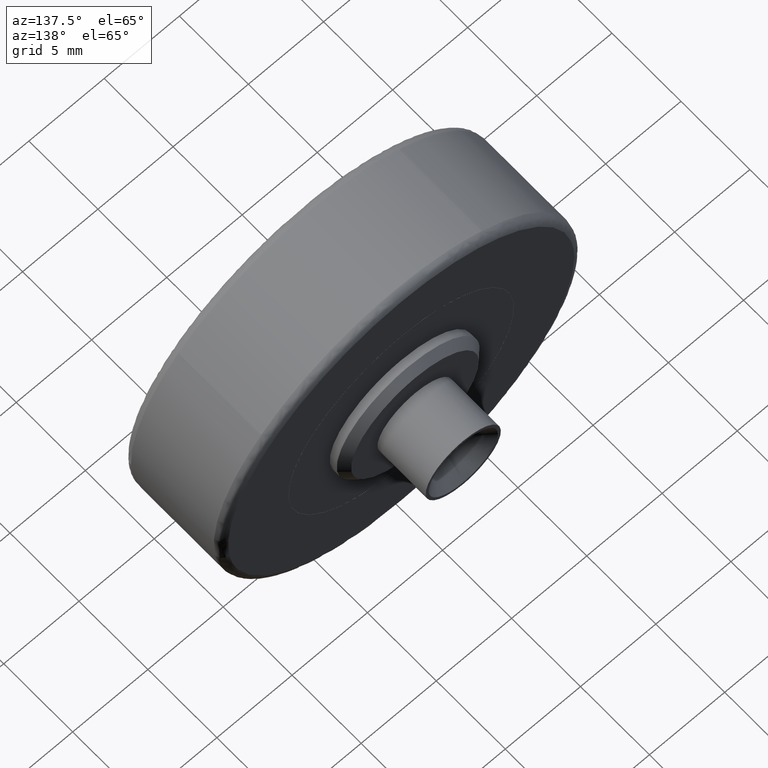
[diagram: clean part render]
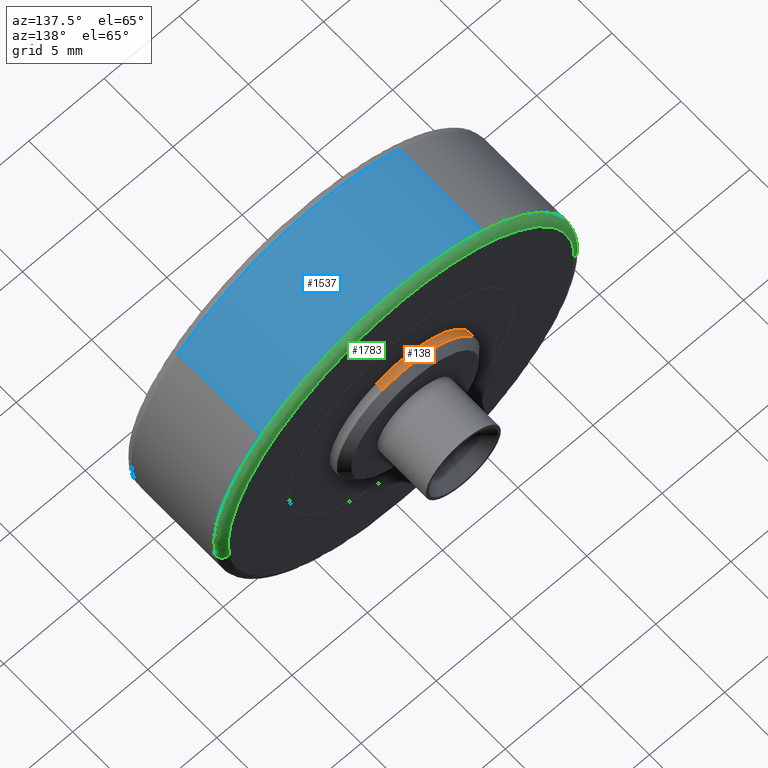
[diagram: same view with three faces highlighted in distinct colors, each labeled with its STEP entity id]
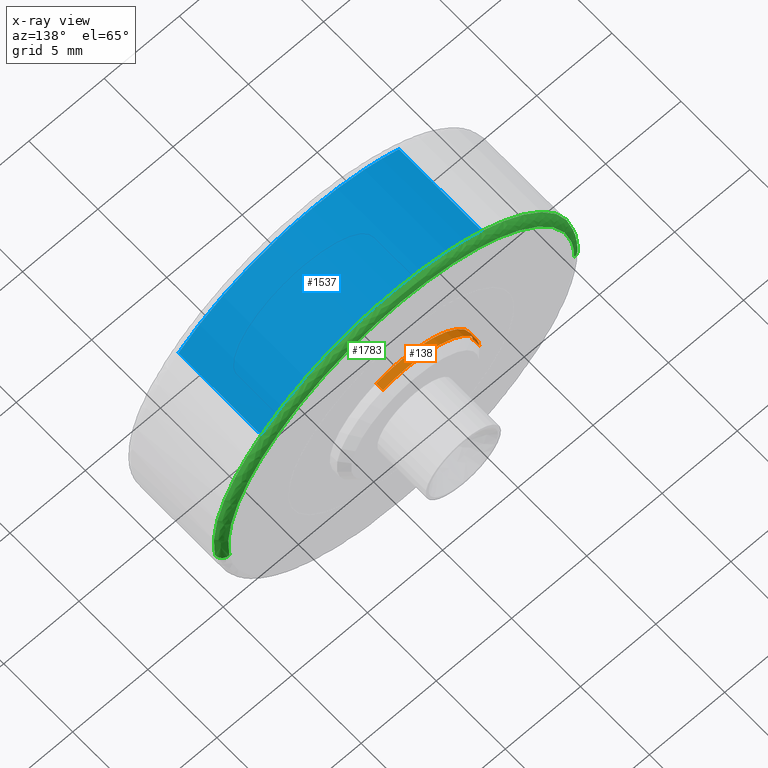
[diagram: x-ray of the same camera — body ghosted, the three highlighted faces saturated]
A machine part, auxiliary view with three faces highlighted in distinct colors.
The next image is the same camera in x-ray (body ghosted, the three faces saturated) — at least one of them is partly hidden behind the body in this view.
Their STEP definitions:

[orange] entity #138 — the highlighted face is a freeform B-spline surface patch.
#44=CARTESIAN_POINT('',(1.670185378359968,7.512500000000002,4.446681999189122));
#45=CARTESIAN_POINT('',(1.002199895648189,7.512500000000003,4.697579091984466));
#46=CARTESIAN_POINT('',(0.289980562790571,7.512500000000001,4.741140292503867));
#47=CARTESIAN_POINT('',(-4.451159729713296,7.512500000000002,5.031120855294438));
#48=CARTESIAN_POINT('',(-4.741140292503867,7.512500000000001,0.289980562790571));
#49=CARTESIAN_POINT('',(1.670185378359968,6.987187499999999,4.446681999189122));
#50=CARTESIAN_POINT('',(1.002199895648189,6.987187499999999,4.697579091984466));
#51=CARTESIAN_POINT('',(0.289980562790571,6.987187499999999,4.741140292503867));
#52=CARTESIAN_POINT('',(-4.451159729713296,6.987187499999999,5.031120855294438));
#53=CARTESIAN_POINT('',(-4.741140292503867,6.987187499999999,0.289980562790571));
#61=(BOUNDED_SURFACE()B_SPLINE_SURFACE(2,1,((#44,#49),(#45,#50),(#46,#51),(#47,#52),(#48,#53)),.UNSPECIFIED.,.F.,.F.,.U.)B_SPLINE_SURFACE_WITH_KNOTS((3,2,3),(2,2),(0.0,1.574011537017761,9.444069222106565),(0.0,1.0),.UNSPECIFIED.)GEOMETRIC_REPRESENTATION_ITEM()RATIONAL_B_SPLINE_SURFACE(((0.906274169979695,0.906274169979695),(0.941421356237309,0.941421356237309),(1.0,1.0),(0.707106781186548,0.707106781186548),(1.0,1.0)))REPRESENTATION_ITEM('')SURFACE());
#62=CARTESIAN_POINT('',(1.670185378365252,7.500000000000000,4.446681999187137));
#63=VERTEX_POINT('',#62);
#64=CARTESIAN_POINT('',(0.0,7.500000000000000,4.750000000000000));
#65=VERTEX_POINT('',#64);
#66=CARTESIAN_POINT('',(1.670185378365252,7.500000000000000,4.446681999187137));
#67=CARTESIAN_POINT('',(0.862635083822945,7.500000000000000,4.750000000000000));
#68=CARTESIAN_POINT('',(0.0,7.500000000000000,4.750000000000000));
#76=(BOUNDED_CURVE()B_SPLINE_CURVE(2,(#66,#67,#68),.UNSPECIFIED.,.F.,.U.)B_SPLINE_CURVE_WITH_KNOTS((3,3),(0.440284170898534,0.500000000000000),.UNSPECIFIED.)CURVE()GEOMETRIC_REPRESENTATION_ITEM()RATIONAL_B_SPLINE_CURVE((0.893499554635306,0.930038554401430,1.0))REPRESENTATION_ITEM(''));
#77=EDGE_CURVE('',#63,#65,#76,.T.);
#78=ORIENTED_EDGE('',*,*,#77,.T.);
#79=CARTESIAN_POINT('',(-4.741140292506802,7.499999999989063,0.289980562832113));
#80=VERTEX_POINT('',#79);
#81=CARTESIAN_POINT('',(0.0,7.500000000000000,4.750000000000000));
#82=CARTESIAN_POINT('',(-4.468353817646419,7.499999999999999,4.750000000000000));
#83=CARTESIAN_POINT('',(-4.741140292506802,7.499999999989063,0.289980562832113));
#91=(BOUNDED_CURVE()B_SPLINE_CURVE(2,(#81,#82,#83),.UNSPECIFIED.,.F.,.U.)B_SPLINE_CURVE_WITH_KNOTS((3,3),(0.500000000000000,0.739332962235970),.UNSPECIFIED.)CURVE()GEOMETRIC_REPRESENTATION_ITEM()RATIONAL_B_SPLINE_CURVE((1.0,0.719603993290194,0.976072041660346))REPRESENTATION_ITEM(''));
#92=EDGE_CURVE('',#65,#80,#91,.T.);
#93=ORIENTED_EDGE('',*,*,#92,.T.);
#94=CARTESIAN_POINT('',(-4.741140292502350,7.0,0.289980562815380));
#95=VERTEX_POINT('',#94);
#96=CARTESIAN_POINT('',(-4.741140292506802,7.499999999989063,0.289980562832113));
#97=CARTESIAN_POINT('',(-4.741140292502350,7.0,0.289980562815380));
#98=QUASI_UNIFORM_CURVE('',1,(#96,#97),.UNSPECIFIED.,.F.,.U.);
#99=EDGE_CURVE('',#80,#95,#98,.T.);
#100=ORIENTED_EDGE('',*,*,#99,.T.);
#101=CARTESIAN_POINT('',(0.0,7.0,4.750000000000000));
#102=VERTEX_POINT('',#101);
#103=CARTESIAN_POINT('',(0.0,7.0,4.750000000000000));
#104=CARTESIAN_POINT('',(-4.468353817755182,6.999999999999999,4.750000000000000));
#105=CARTESIAN_POINT('',(-4.741140292502350,7.0,0.289980562815380));
#113=(BOUNDED_CURVE()B_SPLINE_CURVE(2,(#103,#104,#105),.UNSPECIFIED.,.F.,.U.)B_SPLINE_CURVE_WITH_KNOTS((3,3),(0.500000000000000,0.739332962240162),.UNSPECIFIED.)CURVE()GEOMETRIC_REPRESENTATION_ITEM()RATIONAL_B_SPLINE_CURVE((1.0,0.719603993285282,0.976072041669330))REPRESENTATION_ITEM(''));
#114=EDGE_CURVE('',#102,#95,#113,.T.);
#115=ORIENTED_EDGE('',*,*,#114,.F.);
#116=CARTESIAN_POINT('',(1.670179397081614,6.999999999999999,4.446684245763721));
#117=VERTEX_POINT('',#116);
#118=CARTESIAN_POINT('',(1.670179397081614,6.999999999999999,4.446684245763721));
#119=CARTESIAN_POINT('',(0.862631783818796,6.999999999999999,4.750000000000001));
#120=CARTESIAN_POINT('',(0.0,7.0,4.750000000000000));
#128=(BOUNDED_CURVE()B_SPLINE_CURVE(2,(#118,#119,#120),.UNSPECIFIED.,.F.,.U.)B_SPLINE_CURVE_WITH_KNOTS((3,3),(0.440284383358889,0.500000000000000),.UNSPECIFIED.)CURVE()GEOMETRIC_REPRESENTATION_ITEM()RATIONAL_B_SPLINE_CURVE((0.893499814636771,0.930038803314220,1.0))REPRESENTATION_ITEM(''));
#129=EDGE_CURVE('',#117,#102,#128,.T.);
#130=ORIENTED_EDGE('',*,*,#129,.F.);
#131=CARTESIAN_POINT('',(1.670185378365252,7.500000000000000,4.446681999187137));
#132=CARTESIAN_POINT('',(1.670179397081614,6.999999999999999,4.446684245763721));
#133=QUASI_UNIFORM_CURVE('',1,(#131,#132),.UNSPECIFIED.,.F.,.U.);
#134=EDGE_CURVE('',#63,#117,#133,.T.);
#135=ORIENTED_EDGE('',*,*,#134,.F.);
#136=EDGE_LOOP('',(#78,#93,#100,#115,#130,#135));
#137=FACE_OUTER_BOUND('',#136,.T.);
#138=ADVANCED_FACE('',(#137),#61,.T.);

[blue] entity #1537 — the highlighted face is a freeform B-spline surface patch.
#1320=CARTESIAN_POINT('',(-5.810634932665174,0.499999999980924,10.499358155586769));
#1321=VERTEX_POINT('',#1320);
#1337=CARTESIAN_POINT('',(-5.810634867246032,6.500000000006367,10.499358191791520));
#1338=VERTEX_POINT('',#1337);
#1339=CARTESIAN_POINT('',(-5.810634867246032,6.500000000006367,10.499358191791520));
#1340=CARTESIAN_POINT('',(-5.810634932665174,0.499999999980924,10.499358155586769));
#1341=QUASI_UNIFORM_CURVE('',1,(#1339,#1340),.UNSPECIFIED.,.F.,.U.);
#1342=EDGE_CURVE('',#1338,#1321,#1341,.T.);
#1389=CARTESIAN_POINT('',(8.847328477253249,6.500000000000000,8.107082016088356));
#1390=VERTEX_POINT('',#1389);
#1406=CARTESIAN_POINT('',(8.847328482693925,0.500000000000004,8.107082010150897));
#1407=VERTEX_POINT('',#1406);
#1408=CARTESIAN_POINT('',(8.847328477253249,6.500000000000000,8.107082016088356));
#1409=CARTESIAN_POINT('',(8.847328482693925,0.500000000000004,8.107082010150897));
#1410=QUASI_UNIFORM_CURVE('',1,(#1408,#1409),.UNSPECIFIED.,.F.,.U.);
#1411=EDGE_CURVE('',#1390,#1407,#1410,.T.);
#1463=CARTESIAN_POINT('',(8.847328041721486,6.650000000059784,8.107082491387921));
#1464=CARTESIAN_POINT('',(2.460650501839288,6.650000000059784,15.076917984249544));
#1465=CARTESIAN_POINT('',(-5.810636787052554,6.650000000059783,10.499357129317559));
#1466=CARTESIAN_POINT('',(8.847328041721486,0.346249999846186,8.107082491387921));
#1467=CARTESIAN_POINT('',(2.460650501839288,0.346249999846186,15.076917984249544));
#1468=CARTESIAN_POINT('',(-5.810636787052554,0.346249999846186,10.499357129317559));
#1476=(BOUNDED_SURFACE()B_SPLINE_SURFACE(2,1,((#1463,#1466),(#1464,#1467),(#1465,#1468)),.UNSPECIFIED.,.F.,.F.,.U.)B_SPLINE_SURFACE_WITH_KNOTS((3,3),(2,2),(0.0,16.628055996427161),(0.0,6.303750000213598),.UNSPECIFIED.)GEOMETRIC_REPRESENTATION_ITEM()RATIONAL_B_SPLINE_SURFACE(((1.0,1.0),(0.753969696196700,0.753969696196700),(0.921270302782944,0.921270302782944)))REPRESENTATION_ITEM('')SURFACE());
#1477=CARTESIAN_POINT('',(0.0,0.500000000000000,12.0));
#1478=VERTEX_POINT('',#1477);
#1479=CARTESIAN_POINT('',(0.0,0.500000000000000,12.0));
#1480=CARTESIAN_POINT('',(-3.099093703464986,0.500000000000000,11.999999999999996));
#1481=CARTESIAN_POINT('',(-5.810634932665174,0.499999999980924,10.499358155586771));
#1489=(BOUNDED_CURVE()B_SPLINE_CURVE(2,(#1479,#1480,#1481),.UNSPECIFIED.,.F.,.U.)B_SPLINE_CURVE_WITH_KNOTS((3,3),(0.500000000000000,0.582484261791916),.UNSPECIFIED.)CURVE()GEOMETRIC_REPRESENTATION_ITEM()RATIONAL_B_SPLINE_CURVE((1.0,0.903363676249257,0.870495159113431))REPRESENTATION_ITEM(''));
#1490=EDGE_CURVE('',#1478,#1321,#1489,.T.);
#1491=ORIENTED_EDGE('',*,*,#1490,.F.);
#1492=CARTESIAN_POINT('',(8.847328482693925,0.500000000000004,8.107082010150897));
#1493=CARTESIAN_POINT('',(5.280127149796825,0.500000000000000,12.000000000000002));
#1494=CARTESIAN_POINT('',(0.0,0.500000000000000,12.0));
#1502=(BOUNDED_CURVE()B_SPLINE_CURVE(2,(#1492,#1493,#1494),.UNSPECIFIED.,.F.,.U.)B_SPLINE_CURVE_WITH_KNOTS((3,3),(0.368415192661570,0.500000000000000),.UNSPECIFIED.)CURVE()GEOMETRIC_REPRESENTATION_ITEM()RATIONAL_B_SPLINE_CURVE((0.853959782865036,0.845838808926797,1.0))REPRESENTATION_ITEM(''));
#1503=EDGE_CURVE('',#1407,#1478,#1502,.T.);
#1504=ORIENTED_EDGE('',*,*,#1503,.F.);
#1505=ORIENTED_EDGE('',*,*,#1411,.F.);
#1506=CARTESIAN_POINT('',(0.0,6.500000000000000,12.0));
#1507=VERTEX_POINT('',#1506);
#1508=CARTESIAN_POINT('',(8.847328477253249,6.500000000000000,8.107082016088356));
#1509=CARTESIAN_POINT('',(5.280127140184427,6.500000000000001,12.000000000000002));
#1510=CARTESIAN_POINT('',(0.0,6.500000000000000,12.0));
#1518=(BOUNDED_CURVE()B_SPLINE_CURVE(2,(#1508,#1509,#1510),.UNSPECIFIED.,.F.,.U.)B_SPLINE_CURVE_WITH_KNOTS((3,3),(0.368415192864190,0.500000000000000),.UNSPECIFIED.)CURVE()GEOMETRIC_REPRESENTATION_ITEM()RATIONAL_B_SPLINE_CURVE((0.853959782840026,0.845838809164181,1.0))REPRESENTATION_ITEM(''));
#1519=EDGE_CURVE('',#1390,#1507,#1518,.T.);
#1520=ORIENTED_EDGE('',*,*,#1519,.T.);
#1521=CARTESIAN_POINT('',(0.0,6.500000000000000,12.0));
#1522=CARTESIAN_POINT('',(-3.099093663586892,6.500000000000000,12.000000000000002));
#1523=CARTESIAN_POINT('',(-5.810634867246032,6.500000000006366,10.499358191791520));
#1531=(BOUNDED_CURVE()B_SPLINE_CURVE(2,(#1521,#1522,#1523),.UNSPECIFIED.,.F.,.U.)B_SPLINE_CURVE_WITH_KNOTS((3,3),(0.500000000000000,0.582484260833104),.UNSPECIFIED.)CURVE()GEOMETRIC_REPRESENTATION_ITEM()RATIONAL_B_SPLINE_CURVE((1.0,0.903363677372575,0.870495159877570))REPRESENTATION_ITEM(''));
#1532=EDGE_CURVE('',#1507,#1338,#1531,.T.);
#1533=ORIENTED_EDGE('',*,*,#1532,.T.);
#1534=ORIENTED_EDGE('',*,*,#1342,.T.);
#1535=EDGE_LOOP('',(#1491,#1504,#1505,#1520,#1533,#1534));
#1536=FACE_OUTER_BOUND('',#1535,.T.);
#1537=ADVANCED_FACE('',(#1536),#1476,.T.);

[green] entity #1783 — the highlighted face is a freeform B-spline surface patch.
#1337=CARTESIAN_POINT('',(-5.810634867246032,6.500000000006367,10.499358191791520));
#1338=VERTEX_POINT('',#1337);
#1344=CARTESIAN_POINT('',(-12.0,6.500000000050907,0.0));
#1345=VERTEX_POINT('',#1344);
#1346=CARTESIAN_POINT('',(-5.810634867246032,6.500000000006366,10.499358191791520));
#1347=CARTESIAN_POINT('',(-11.999999999999963,6.500000000020898,7.073992546621740));
#1348=CARTESIAN_POINT('',(-11.999999999999993,6.500000000050908,0.0));
#1356=(BOUNDED_CURVE()B_SPLINE_CURVE(2,(#1346,#1347,#1348),.UNSPECIFIED.,.F.,.U.)B_SPLINE_CURVE_WITH_KNOTS((3,3),(0.582484260833104,0.749999999999999),.UNSPECIFIED.)CURVE()GEOMETRIC_REPRESENTATION_ITEM()RATIONAL_B_SPLINE_CURVE((0.870495159877570,0.803743103813973,0.999999999999998))REPRESENTATION_ITEM(''));
#1357=EDGE_CURVE('',#1338,#1345,#1356,.T.);
#1374=CARTESIAN_POINT('',(11.919739665420460,6.500000000054701,-1.385570751929333));
#1375=VERTEX_POINT('',#1374);
#1389=CARTESIAN_POINT('',(8.847328477253249,6.500000000000000,8.107082016088356));
#1390=VERTEX_POINT('',#1389);
#1391=CARTESIAN_POINT('',(11.919739665420463,6.500000000054701,-1.385570751929333));
#1392=CARTESIAN_POINT('',(11.999999999999998,6.499999999999999,-0.695109949179016));
#1393=CARTESIAN_POINT('',(12.0,6.500000000000000,-1.535880E-016));
#1394=CARTESIAN_POINT('',(12.000000000000002,6.500000000000000,4.666544040076233));
#1395=CARTESIAN_POINT('',(8.847328477253249,6.500000000000000,8.107082016088357));
#1403=(BOUNDED_CURVE()B_SPLINE_CURVE(2,(#1391,#1392,#1393,#1394,#1395),.UNSPECIFIED.,.F.,.U.)B_SPLINE_CURVE_WITH_KNOTS((3,2,3),(0.229999999999874,0.250000000000000,0.368415192864190),.UNSPECIFIED.)CURVE()GEOMETRIC_REPRESENTATION_ITEM()RATIONAL_B_SPLINE_CURVE((0.956886118190411,0.976568542494776,1.0,0.861267972022366,0.853959782840026))REPRESENTATION_ITEM(''));
#1404=EDGE_CURVE('',#1375,#1390,#1403,.T.);
#1506=CARTESIAN_POINT('',(0.0,6.500000000000000,12.0));
#1507=VERTEX_POINT('',#1506);
#1508=CARTESIAN_POINT('',(8.847328477253249,6.500000000000000,8.107082016088356));
#1509=CARTESIAN_POINT('',(5.280127140184427,6.500000000000001,12.000000000000002));
#1510=CARTESIAN_POINT('',(0.0,6.500000000000000,12.0));
#1518=(BOUNDED_CURVE()B_SPLINE_CURVE(2,(#1508,#1509,#1510),.UNSPECIFIED.,.F.,.U.)B_SPLINE_CURVE_WITH_KNOTS((3,3),(0.368415192864190,0.500000000000000),.UNSPECIFIED.)CURVE()GEOMETRIC_REPRESENTATION_ITEM()RATIONAL_B_SPLINE_CURVE((0.853959782840026,0.845838809164181,1.0))REPRESENTATION_ITEM(''));
#1519=EDGE_CURVE('',#1390,#1507,#1518,.T.);
#1521=CARTESIAN_POINT('',(0.0,6.500000000000000,12.0));
#1522=CARTESIAN_POINT('',(-3.099093663586892,6.500000000000000,12.000000000000002));
#1523=CARTESIAN_POINT('',(-5.810634867246032,6.500000000006366,10.499358191791520));
#1531=(BOUNDED_CURVE()B_SPLINE_CURVE(2,(#1521,#1522,#1523),.UNSPECIFIED.,.F.,.U.)B_SPLINE_CURVE_WITH_KNOTS((3,3),(0.500000000000000,0.582484260833104),.UNSPECIFIED.)CURVE()GEOMETRIC_REPRESENTATION_ITEM()RATIONAL_B_SPLINE_CURVE((1.0,0.903363677372575,0.870495159877570))REPRESENTATION_ITEM(''));
#1532=EDGE_CURVE('',#1507,#1338,#1531,.T.);
#1688=CARTESIAN_POINT('',(11.388640628417720,6.998796175226596,-1.323833597733867));
#1689=CARTESIAN_POINT('',(11.465324712267670,6.998796175226593,-0.664137791265817));
#1690=CARTESIAN_POINT('',(11.465324712267673,6.998796175226595,-2.106076E-015));
#1691=CARTESIAN_POINT('',(11.465324712267670,6.998796175226596,11.465324712267666));
#1692=CARTESIAN_POINT('',(2.808102E-015,6.998796175226595,11.465324712267673));
#1693=CARTESIAN_POINT('',(-11.465324712267662,6.998796175226596,11.465324712267670));
#1694=CARTESIAN_POINT('',(-11.465324712267673,6.998796175226595,3.510127E-015));
#1695=CARTESIAN_POINT('',(11.958349483954628,7.038667842741715,-1.390057456093603));
#1696=CARTESIAN_POINT('',(12.038869635959983,7.038667842741712,-0.697360824051375));
#1697=CARTESIAN_POINT('',(12.038869635959982,7.038667842741712,-2.211431E-015));
#1698=CARTESIAN_POINT('',(12.038869635959982,7.038667842741712,12.038869635959976));
#1699=CARTESIAN_POINT('',(2.948575E-015,7.038667842741712,12.038869635959982));
#1700=CARTESIAN_POINT('',(-12.038869635959976,7.038667842741712,12.038869635959983));
#1701=CARTESIAN_POINT('',(-12.038869635959982,7.038667842741712,3.685719E-015));
#1702=CARTESIAN_POINT('',(11.918531113131714,6.465137893018172,-1.385428905696564));
#1703=CARTESIAN_POINT('',(11.998783152779627,6.465137893018171,-0.695038783545141));
#1704=CARTESIAN_POINT('',(11.998783152779630,6.465137893018171,-2.204068E-015));
#1705=CARTESIAN_POINT('',(11.998783152779625,6.465137893018171,11.998783152779621));
#1706=CARTESIAN_POINT('',(2.938757E-015,6.465137893018171,11.998783152779630));
#1707=CARTESIAN_POINT('',(-11.998783152779621,6.465137893018171,11.998783152779628));
#1708=CARTESIAN_POINT('',(-11.998783152779630,6.465137893018171,3.673447E-015));
#1716=(BOUNDED_SURFACE()B_SPLINE_SURFACE(2,2,((#1688,#1695,#1702),(#1689,#1696,#1703),(#1690,#1697,#1704),(#1691,#1698,#1705),(#1692,#1699,#1706),(#1693,#1700,#1707),(#1694,#1701,#1708)),.UNSPECIFIED.,.F.,.F.,.U.)B_SPLINE_SURFACE_WITH_KNOTS((3,2,2,3),(3,3),(0.0,1.590417271692089,21.470652127112590,41.350886982533083),(0.0,0.911185181254625),.UNSPECIFIED.)GEOMETRIC_REPRESENTATION_ITEM()RATIONAL_B_SPLINE_SURFACE(((0.876475779619699,0.573569932033053,0.871620856583481),(0.894504209402347,0.585367822500240,0.889549424349295),(0.915966621911565,0.599412927647948,0.910892953526734),(0.647686209694202,0.423848945870745,0.644098584373797),(0.915966621911565,0.599412927647948,0.910892953526734),(0.647686209694202,0.423848945870745,0.644098584373797),(0.915966621911565,0.599412927647948,0.910892953526734)))REPRESENTATION_ITEM('')SURFACE());
#1717=ORIENTED_EDGE('',*,*,#1519,.F.);
#1718=ORIENTED_EDGE('',*,*,#1404,.F.);
#1719=CARTESIAN_POINT('',(11.423083846275119,7.0,-1.327838637292638));
#1720=VERTEX_POINT('',#1719);
#1721=CARTESIAN_POINT('',(11.423083846275116,7.0,-1.327838637292637));
#1722=CARTESIAN_POINT('',(11.919739665312308,6.999999999502720,-1.385570751912256));
#1723=CARTESIAN_POINT('',(11.919739665420465,6.500000000054700,-1.385570751929333));
#1731=(BOUNDED_CURVE()B_SPLINE_CURVE(2,(#1721,#1722,#1723),.UNSPECIFIED.,.F.,.U.)B_SPLINE_CURVE_WITH_KNOTS((3,3),(-1.736413120042838,-0.276558718240506),.UNSPECIFIED.)CURVE()GEOMETRIC_REPRESENTATION_ITEM()RATIONAL_B_SPLINE_CURVE((0.850203275946493,0.599621899426504,0.845789311821511))REPRESENTATION_ITEM(''));
#1732=EDGE_CURVE('',#1720,#1375,#1731,.T.);
#1733=ORIENTED_EDGE('',*,*,#1732,.F.);
#1734=CARTESIAN_POINT('',(0.0,7.0,11.500000000000000));
#1735=VERTEX_POINT('',#1734);
#1736=CARTESIAN_POINT('',(11.423083846275116,7.0,-1.327838637292638));
#1737=CARTESIAN_POINT('',(11.499999999999995,7.0,-0.666147034628190));
#1738=CARTESIAN_POINT('',(11.500000000000000,7.0,-1.535880E-016));
#1739=CARTESIAN_POINT('',(11.500000000000000,6.999999999999999,11.500000000000000));
#1740=CARTESIAN_POINT('',(0.0,7.0,11.500000000000000));
#1748=(BOUNDED_CURVE()B_SPLINE_CURVE(2,(#1736,#1737,#1738,#1739,#1740),.UNSPECIFIED.,.F.,.U.)B_SPLINE_CURVE_WITH_KNOTS((3,2,3),(0.229999999999924,0.250000000000000,0.500000000000000),.UNSPECIFIED.)CURVE()GEOMETRIC_REPRESENTATION_ITEM()RATIONAL_B_SPLINE_CURVE((0.956886118190510,0.976568542494834,1.0,0.707106781186548,1.0))REPRESENTATION_ITEM(''));
#1749=EDGE_CURVE('',#1720,#1735,#1748,.T.);
#1750=ORIENTED_EDGE('',*,*,#1749,.T.);
#1751=CARTESIAN_POINT('',(-11.500000000088900,7.0,0.0));
#1752=VERTEX_POINT('',#1751);
#1753=CARTESIAN_POINT('',(0.0,7.0,11.500000000000000));
#1754=CARTESIAN_POINT('',(-11.499999999999943,7.0,11.500000000000000));
#1755=CARTESIAN_POINT('',(-11.500000000088903,7.0,0.0));
#1763=(BOUNDED_CURVE()B_SPLINE_CURVE(2,(#1753,#1754,#1755),.UNSPECIFIED.,.F.,.U.)B_SPLINE_CURVE_WITH_KNOTS((3,3),(0.500000000000000,0.749999999999999),.UNSPECIFIED.)CURVE()GEOMETRIC_REPRESENTATION_ITEM()RATIONAL_B_SPLINE_CURVE((1.0,0.707106781186549,0.999999999999998))REPRESENTATION_ITEM(''));
#1764=EDGE_CURVE('',#1735,#1752,#1763,.T.);
#1765=ORIENTED_EDGE('',*,*,#1764,.T.);
#1766=CARTESIAN_POINT('',(-11.500000000088896,7.0,0.0));
#1767=CARTESIAN_POINT('',(-11.999999999898181,6.999999999822197,0.0));
#1768=CARTESIAN_POINT('',(-11.999999999999996,6.500000000050907,0.0));
#1776=(BOUNDED_CURVE()B_SPLINE_CURVE(2,(#1766,#1767,#1768),.UNSPECIFIED.,.F.,.U.)B_SPLINE_CURVE_WITH_KNOTS((3,3),(-1.736413120704134,-0.276558718224886),.UNSPECIFIED.)CURVE()GEOMETRIC_REPRESENTATION_ITEM()RATIONAL_B_SPLINE_CURVE((0.888510408930512,0.626638727340004,0.883897567064773))REPRESENTATION_ITEM(''));
#1777=EDGE_CURVE('',#1752,#1345,#1776,.T.);
#1778=ORIENTED_EDGE('',*,*,#1777,.T.);
#1779=ORIENTED_EDGE('',*,*,#1357,.F.);
#1780=ORIENTED_EDGE('',*,*,#1532,.F.);
#1781=EDGE_LOOP('',(#1717,#1718,#1733,#1750,#1765,#1778,#1779,#1780));
#1782=FACE_OUTER_BOUND('',#1781,.T.);
#1783=ADVANCED_FACE('',(#1782),#1716,.T.);